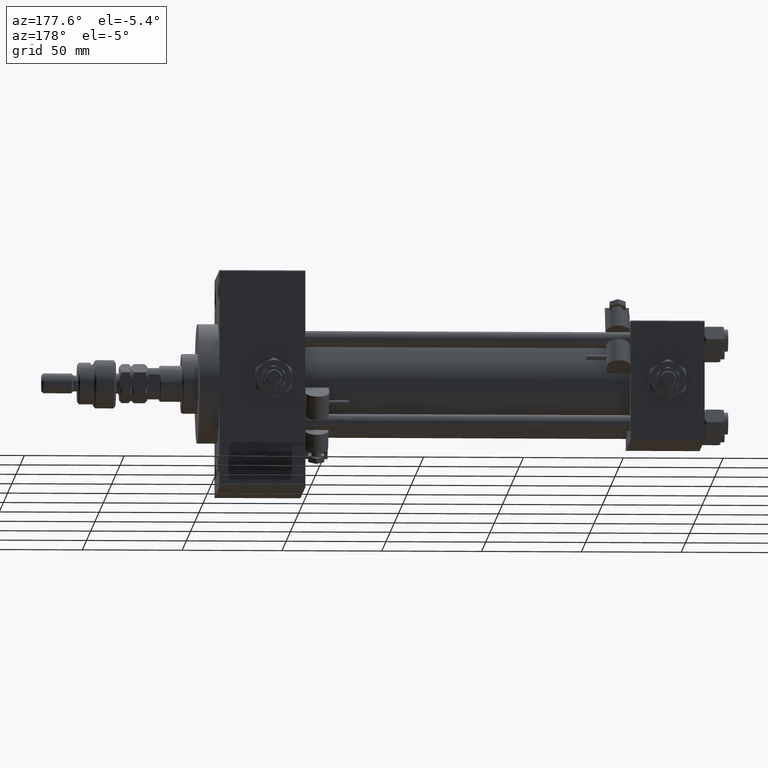
[diagram: clean part render]
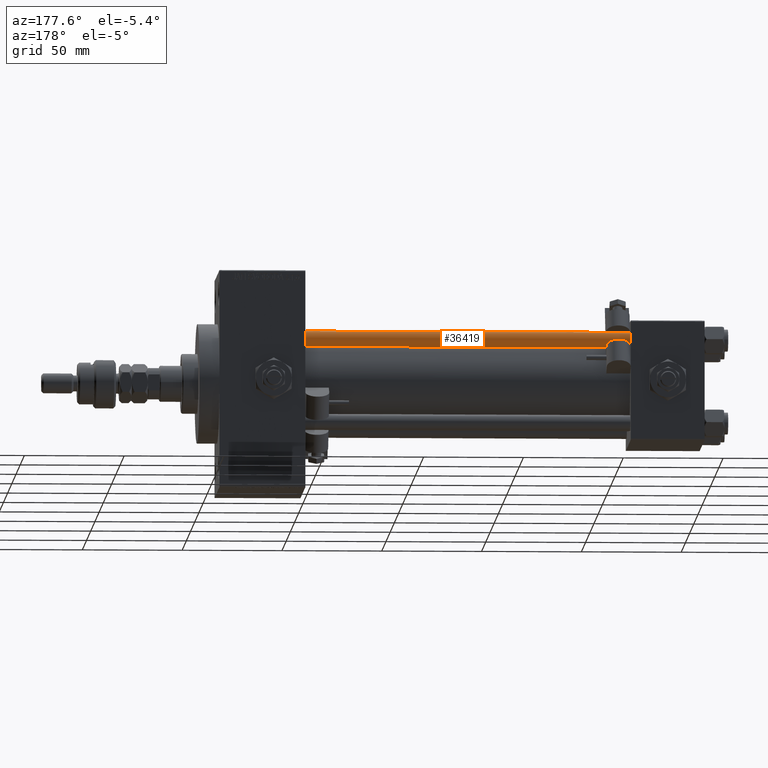
[diagram: same view with one face highlighted and labeled with its STEP entity id]
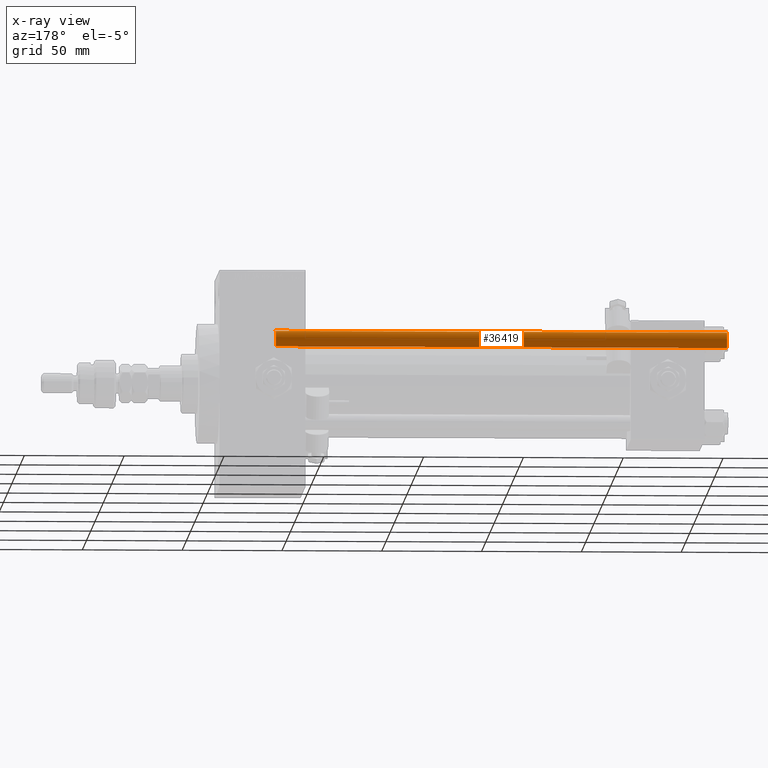
[diagram: x-ray of the same camera — body ghosted, the highlighted face saturated]
A machine part, auxiliary view. The second image highlights one B-rep face of the part: STEP entity #36419.
The next image is the same camera in x-ray: the body ghosted, the highlighted face saturated — about 0% of this face is hidden behind the body in this view.
In plain terms, the highlighted cylindrical surface (edge-blend (fillet) strip) has radius 4 mm, axis along (-1, -0, 0).
Its self-contained STEP definition (entity closure, byte-faithful):
#634 = DIRECTION ( 'NONE',  ( -0.000000000000000000, -0.000000000000000000, -1.000000000000000000 ) ) ;
#2216 = DIRECTION ( 'NONE',  ( -1.000000000000000000, 0.000000000000000000, 0.000000000000000000 ) ) ;
#4272 = AXIS2_PLACEMENT_3D ( 'NONE', #15890, #32055, #43896 ) ;
#5557 = ORIENTED_EDGE ( 'NONE', *, *, #49929, .T. ) ;
#5989 = VECTOR ( 'NONE', #43950, 1000.000000000000000 ) ;
#6285 = EDGE_CURVE ( 'NONE', #35198, #8985, #8269, .T. ) ;
#8269 = CIRCLE ( 'NONE', #14279, 4.000000000000000000 ) ;
#8708 = CYLINDRICAL_SURFACE ( 'NONE', #11144, 4.000000000000000000 ) ;
#8985 = VERTEX_POINT ( 'NONE', #37235 ) ;
#11120 = CARTESIAN_POINT ( 'NONE',  ( -4.000000000000000000, 0.000000000000000000, 227.0000000000000000 ) ) ;
#11144 = AXIS2_PLACEMENT_3D ( 'NONE', #25124, #634, #2216 ) ;
#11263 = DIRECTION ( 'NONE',  ( -0.000000000000000000, -0.000000000000000000, -1.000000000000000000 ) ) ;
#14279 = AXIS2_PLACEMENT_3D ( 'NONE', #25143, #36974, #16512 ) ;
#14616 = CARTESIAN_POINT ( 'NONE',  ( -4.000000000000000000, 0.000000000000000000, 226.5000000000001421 ) ) ;
#14764 = ORIENTED_EDGE ( 'NONE', *, *, #6285, .T. ) ;
#15890 = CARTESIAN_POINT ( 'NONE',  ( 0.000000000000000000, 0.000000000000000000, 226.5000000000001421 ) ) ;
#15895 = CARTESIAN_POINT ( 'NONE',  ( 4.000000000000000000, 4.898587196589411843E-16, 0.5000000000002224887 ) ) ;
#16512 = DIRECTION ( 'NONE',  ( 1.000000000000000000, 0.000000000000000000, 0.000000000000000000 ) ) ;
#16679 = EDGE_CURVE ( 'NONE', #23369, #8985, #36150, .T. ) ;
#22583 = LINE ( 'NONE', #51884, #44656 ) ;
#23167 = CIRCLE ( 'NONE', #4272, 4.000000000000000000 ) ;
#23369 = VERTEX_POINT ( 'NONE', #14616 ) ;
#25124 = CARTESIAN_POINT ( 'NONE',  ( 0.000000000000000000, 0.000000000000000000, 227.0000000000000000 ) ) ;
#25143 = CARTESIAN_POINT ( 'NONE',  ( 0.000000000000000000, 0.000000000000000000, 0.5000000000002224887 ) ) ;
#26796 = ORIENTED_EDGE ( 'NONE', *, *, #16679, .F. ) ;
#32055 = DIRECTION ( 'NONE',  ( 0.000000000000000000, 0.000000000000000000, -1.000000000000000000 ) ) ;
#35198 = VERTEX_POINT ( 'NONE', #15895 ) ;
#36150 = LINE ( 'NONE', #11120, #5989 ) ;
#36419 = ADVANCED_FACE ( 'NONE', ( #37223 ), #8708, .T. ) ;
#36567 = EDGE_CURVE ( 'NONE', #23369, #50074, #23167, .T. ) ;
#36594 = ORIENTED_EDGE ( 'NONE', *, *, #36567, .T. ) ;
#36974 = DIRECTION ( 'NONE',  ( -0.000000000000000000, -0.000000000000000000, 1.000000000000000000 ) ) ;
#37223 = FACE_OUTER_BOUND ( 'NONE', #40581, .T. ) ;
#37235 = CARTESIAN_POINT ( 'NONE',  ( -4.000000000000000000, 0.000000000000000000, 0.5000000000002224887 ) ) ;
#40581 = EDGE_LOOP ( 'NONE', ( #36594, #5557, #14764, #26796 ) ) ;
#43896 = DIRECTION ( 'NONE',  ( 1.000000000000000000, 0.000000000000000000, 0.000000000000000000 ) ) ;
#43950 = DIRECTION ( 'NONE',  ( -0.000000000000000000, -0.000000000000000000, -1.000000000000000000 ) ) ;
#44656 = VECTOR ( 'NONE', #11263, 1000.000000000000000 ) ;
#49929 = EDGE_CURVE ( 'NONE', #50074, #35198, #22583, .T. ) ;
#50074 = VERTEX_POINT ( 'NONE', #52679 ) ;
#51884 = CARTESIAN_POINT ( 'NONE',  ( 4.000000000000000000, 4.898587196589411843E-16, 227.0000000000000000 ) ) ;
#52679 = CARTESIAN_POINT ( 'NONE',  ( 4.000000000000000000, 4.898587196589411843E-16, 226.5000000000001421 ) ) ;